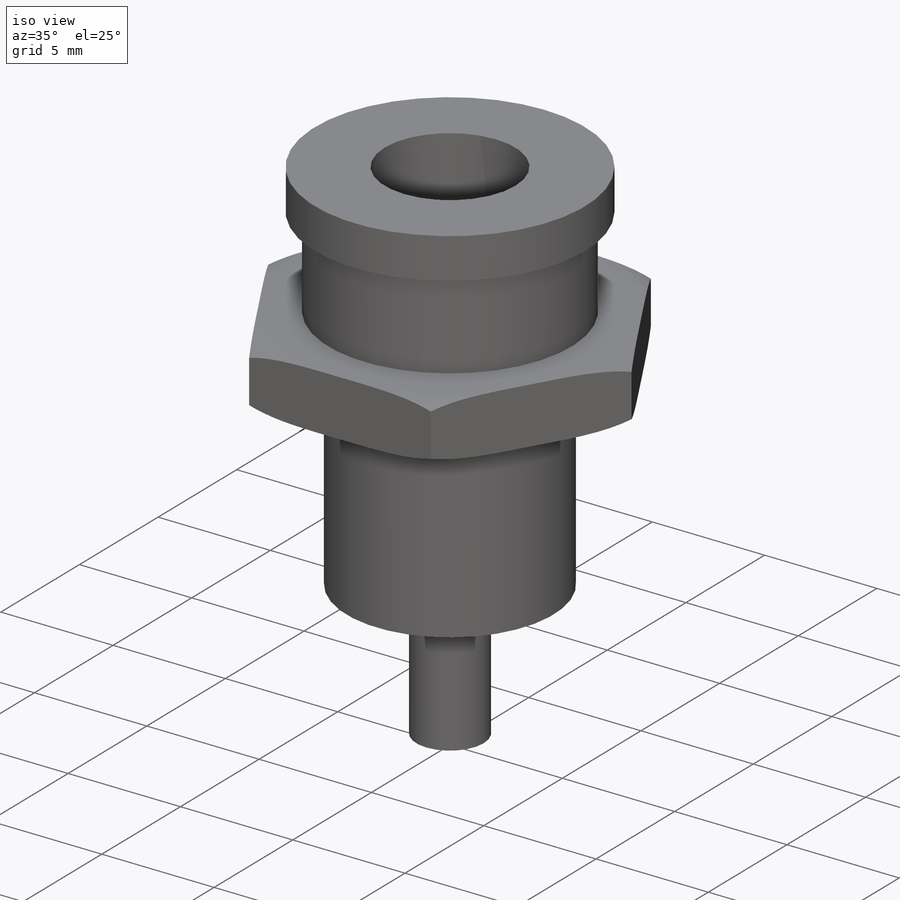
[diagram: iso view]
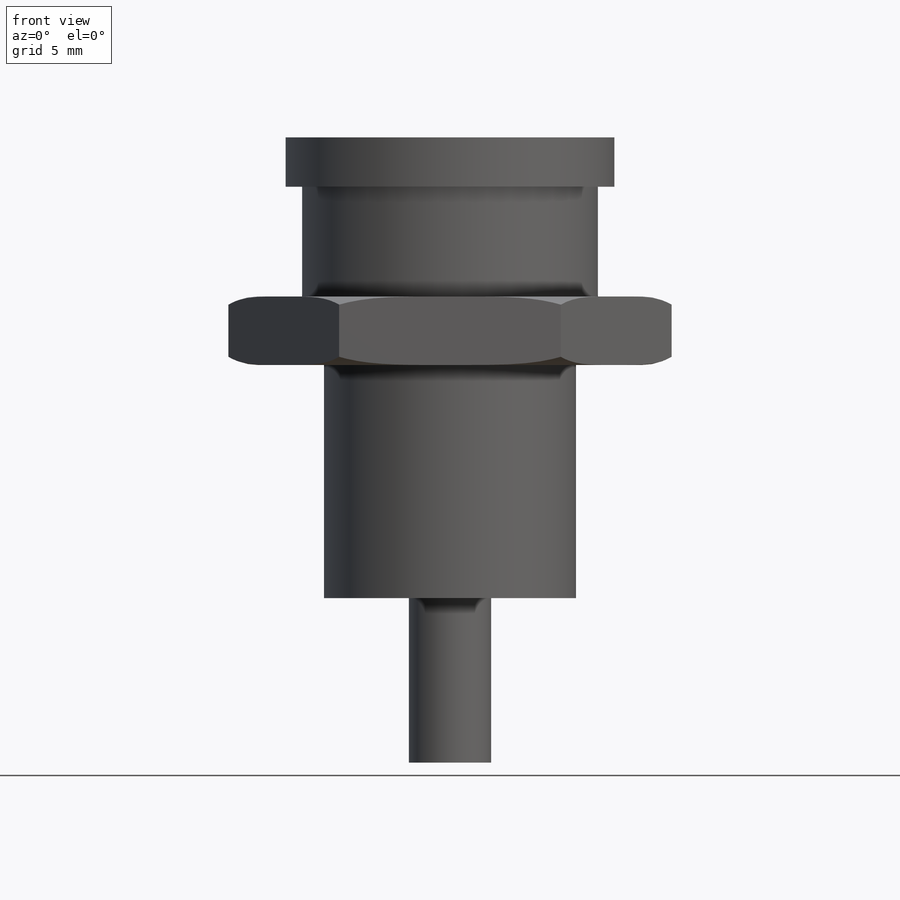
[diagram: front view]
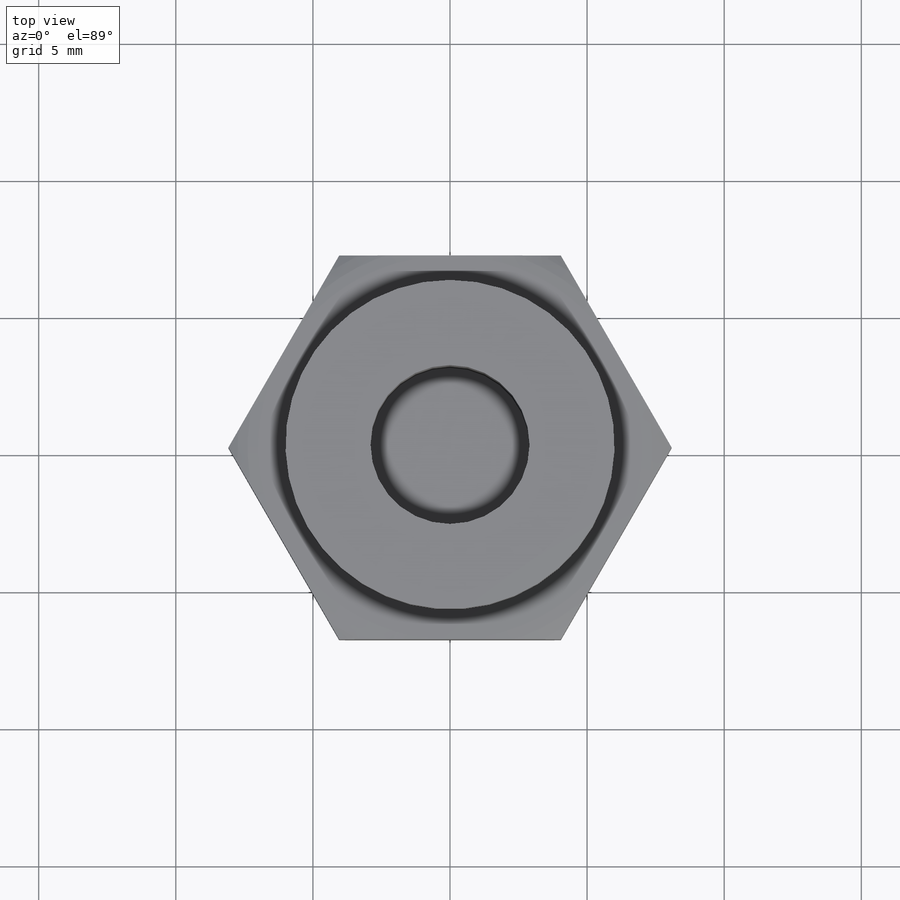
[diagram: top view]
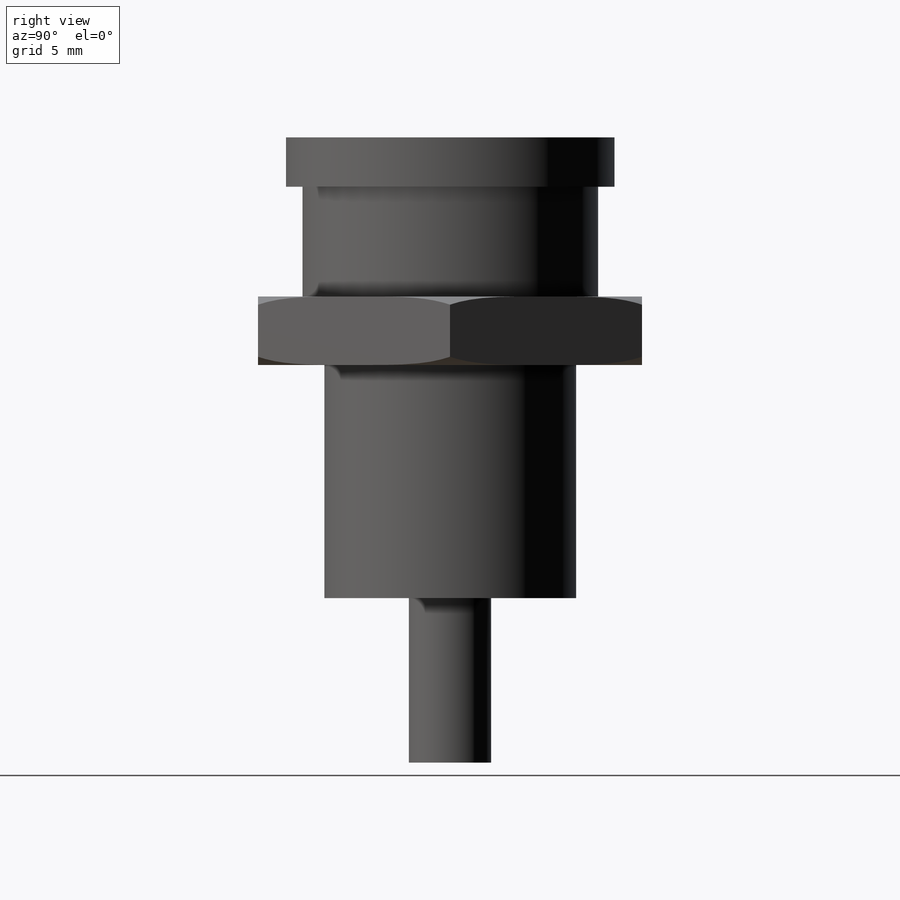
[diagram: right view]
SOLIDWORKS PART (.sldprt)
format: sldprt  version: not decoded by parser v0  size: 222,208 bytes
history: native  units: mm
features: sketch x3, material x1, revolve x1, extrude x1, cut_revolve x1 (+11 scaffold rows collapsed)
feature tree (18):
  scaffold x11  (default folders/planes/origin — collapsed)
  material  "Material <not specified>"
  sketch  "Sketch1"  dims[D1=6.0mm D2=1.8mm D3=22.8mm D4=5.4mm D5=6.8mm D6=16.8mm D7=4.6mm D8=1.5mm D9=2.9mm D10=10.0mm]
  revolve  "Revolve1"  Angle=360deg
  sketch  "Sketch2"  dims[c1.D1=14.0mm c1.D2=14.0mm c2.D1=14.0mm c2.D2=~16.165808mm]
  extrude  "Boss-Extrude1"  Depth=2.5mm
  sketch  "Sketch3"  dims[D1=7.0mm D2=0.3mm]
  cut_revolve  "Cut-Revolve1"  Angle=360deg
decode coverage: 6 of 6 modeling features carry decoded parameters
note: ~ marks probable driven/reference dimensions
note: suppression state not decoded; provenance and decode notes live in map.json
